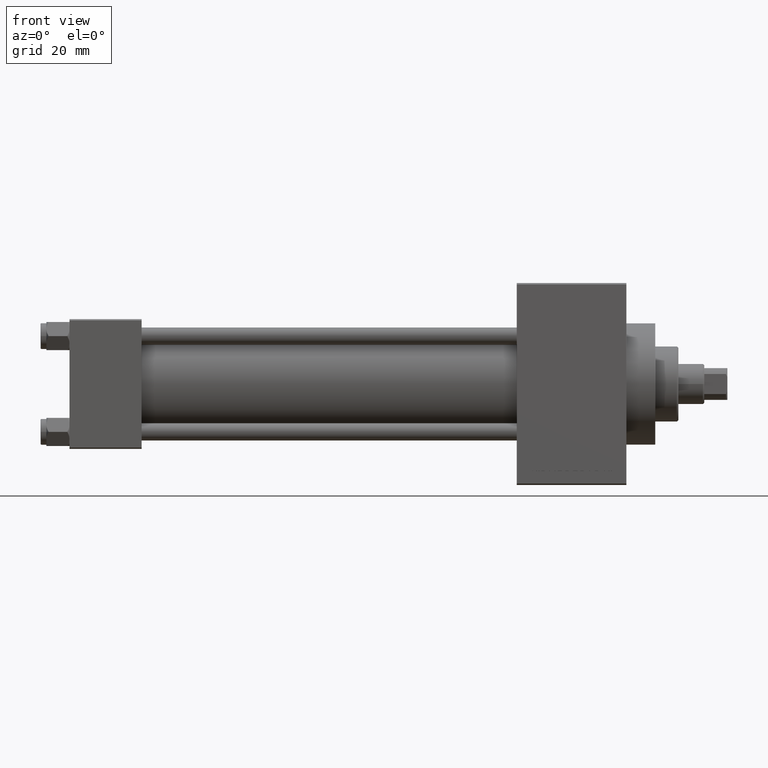
[diagram: clean part render]
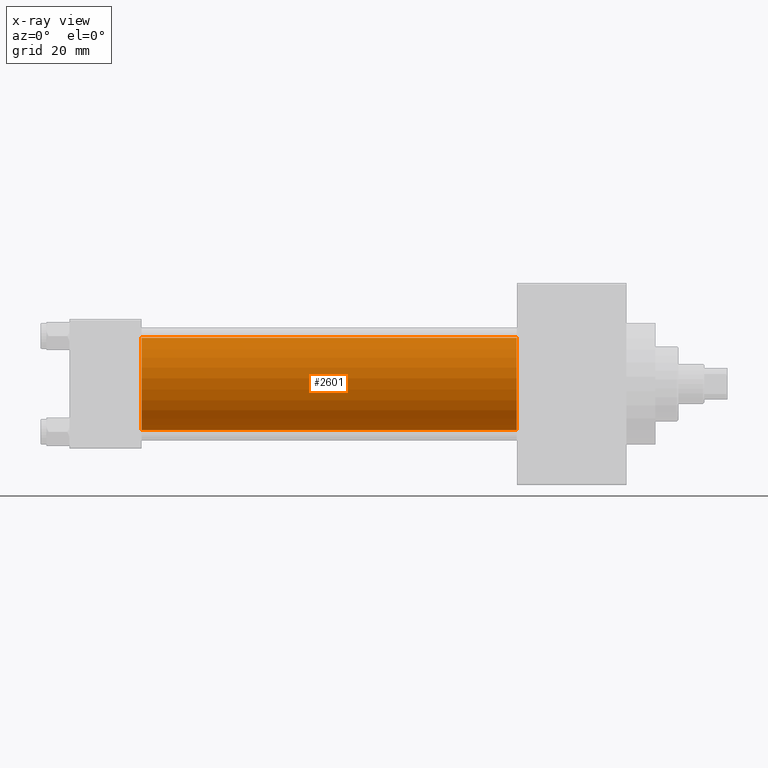
[diagram: x-ray — body ghosted, one internal face saturated and labeled with its STEP entity id]
A machine part, front view, then the same camera in x-ray: the body is ghosted and one INTERNAL B-rep face — a face not visible from any outside direction — is saturated and labeled: STEP entity #2601.
In plain terms, the highlighted cylindrical surface (partial cylindrical patch) has radius 16 mm, axis along (-1, -0, -0).
Its self-contained STEP definition (entity closure, byte-faithful):
#568 = EDGE_CURVE ( 'NONE', #45399, #30493, #12767, .T. ) ;
#607 = AXIS2_PLACEMENT_3D ( 'NONE', #16093, #4405, #20084 ) ;
#903 = CYLINDRICAL_SURFACE ( 'NONE', #607, 16.00000000000000000 ) ;
#1042 = DIRECTION ( 'NONE',  ( 0.000000000000000000, 0.000000000000000000, -1.000000000000000000 ) ) ;
#1286 = DIRECTION ( 'NONE',  ( 1.000000000000000000, 0.000000000000000000, 0.000000000000000000 ) ) ;
#2601 = ADVANCED_FACE ( 'NONE', ( #12582 ), #903, .F. ) ;
#4405 = DIRECTION ( 'NONE',  ( -1.000000000000000000, -0.000000000000000000, -0.000000000000000000 ) ) ;
#6735 = CARTESIAN_POINT ( 'NONE',  ( 155.0000000000000000, -6.426503353294456087E-16, -16.00000000000000000 ) ) ;
#8025 = AXIS2_PLACEMENT_3D ( 'NONE', #38978, #1286, #1042 ) ;
#8208 = AXIS2_PLACEMENT_3D ( 'NONE', #20590, #39094, #47299 ) ;
#10413 = CARTESIAN_POINT ( 'NONE',  ( 25.00000000000000000, -6.426503353294456087E-16, -16.00000000000000000 ) ) ;
#12047 = CARTESIAN_POINT ( 'NONE',  ( 155.0000000000000000, -2.602085213965210642E-15, 16.00000000000000000 ) ) ;
#12582 = FACE_OUTER_BOUND ( 'NONE', #28482, .T. ) ;
#12767 = CIRCLE ( 'NONE', #8025, 16.00000000000000000 ) ;
#13729 = VERTEX_POINT ( 'NONE', #10413 ) ;
#15388 = CIRCLE ( 'NONE', #8208, 16.00000000000000000 ) ;
#16093 = CARTESIAN_POINT ( 'NONE',  ( 155.0000000000000000, -2.602085213965210642E-15, 0.000000000000000000 ) ) ;
#16239 = ORIENTED_EDGE ( 'NONE', *, *, #26369, .F. ) ;
#16777 = VECTOR ( 'NONE', #33027, 1000.000000000000000 ) ;
#18406 = EDGE_CURVE ( 'NONE', #34286, #13729, #15388, .T. ) ;
#18794 = LINE ( 'NONE', #12047, #49109 ) ;
#20084 = DIRECTION ( 'NONE',  ( 0.000000000000000000, 0.000000000000000000, 1.000000000000000000 ) ) ;
#20192 = ORIENTED_EDGE ( 'NONE', *, *, #18406, .F. ) ;
#20590 = CARTESIAN_POINT ( 'NONE',  ( 25.00000000000000000, -2.602085213965210642E-15, 0.000000000000000000 ) ) ;
#25407 = CARTESIAN_POINT ( 'NONE',  ( 155.0000000000000000, -2.602085213965210642E-15, 16.00000000000000000 ) ) ;
#25516 = LINE ( 'NONE', #29518, #16777 ) ;
#26369 = EDGE_CURVE ( 'NONE', #45399, #34286, #18794, .T. ) ;
#27824 = ORIENTED_EDGE ( 'NONE', *, *, #568, .T. ) ;
#28482 = EDGE_LOOP ( 'NONE', ( #27824, #42454, #20192, #16239 ) ) ;
#29518 = CARTESIAN_POINT ( 'NONE',  ( 155.0000000000000000, -6.426503353294456087E-16, -16.00000000000000000 ) ) ;
#30493 = VERTEX_POINT ( 'NONE', #6735 ) ;
#31438 = CARTESIAN_POINT ( 'NONE',  ( 25.00000000000000000, -2.602085213965210642E-15, 16.00000000000000000 ) ) ;
#33027 = DIRECTION ( 'NONE',  ( -1.000000000000000000, -0.000000000000000000, -0.000000000000000000 ) ) ;
#33781 = EDGE_CURVE ( 'NONE', #30493, #13729, #25516, .T. ) ;
#34286 = VERTEX_POINT ( 'NONE', #31438 ) ;
#38978 = CARTESIAN_POINT ( 'NONE',  ( 155.0000000000000000, -2.602085213965210642E-15, 0.000000000000000000 ) ) ;
#39094 = DIRECTION ( 'NONE',  ( 1.000000000000000000, 0.000000000000000000, 0.000000000000000000 ) ) ;
#41771 = DIRECTION ( 'NONE',  ( -1.000000000000000000, -0.000000000000000000, -0.000000000000000000 ) ) ;
#42454 = ORIENTED_EDGE ( 'NONE', *, *, #33781, .T. ) ;
#45399 = VERTEX_POINT ( 'NONE', #25407 ) ;
#47299 = DIRECTION ( 'NONE',  ( 0.000000000000000000, 0.000000000000000000, -1.000000000000000000 ) ) ;
#49109 = VECTOR ( 'NONE', #41771, 1000.000000000000000 ) ;